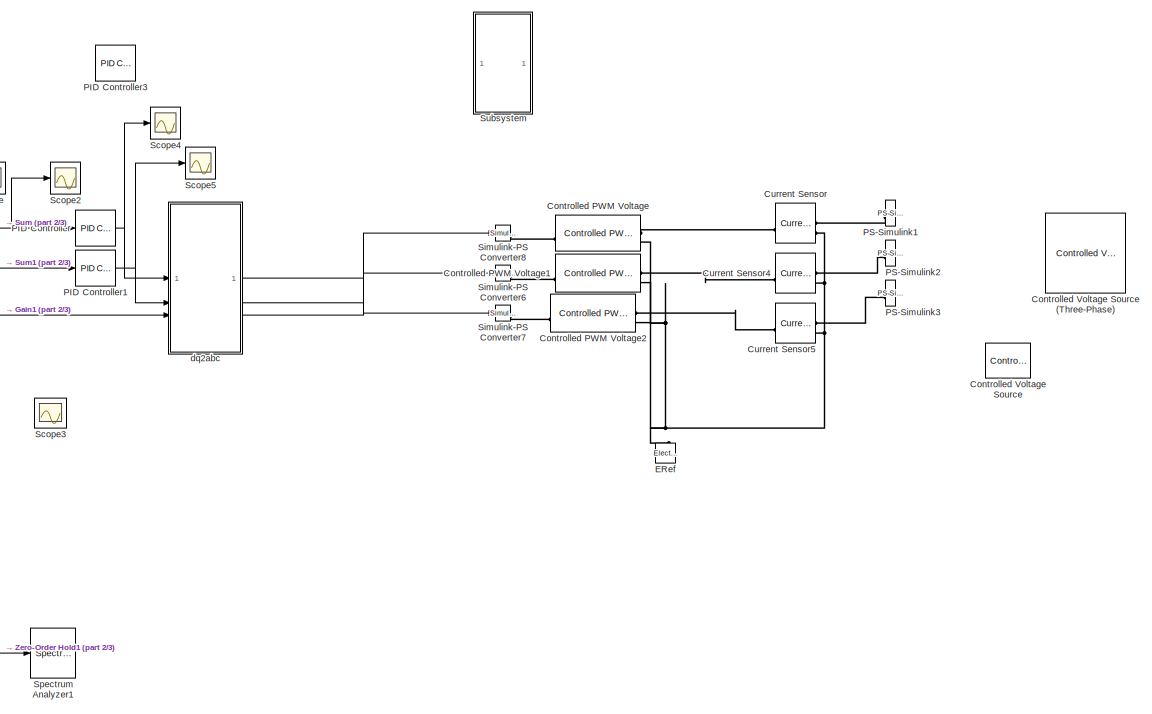
[diagram: root canvas - part 1/3, right side, full height]
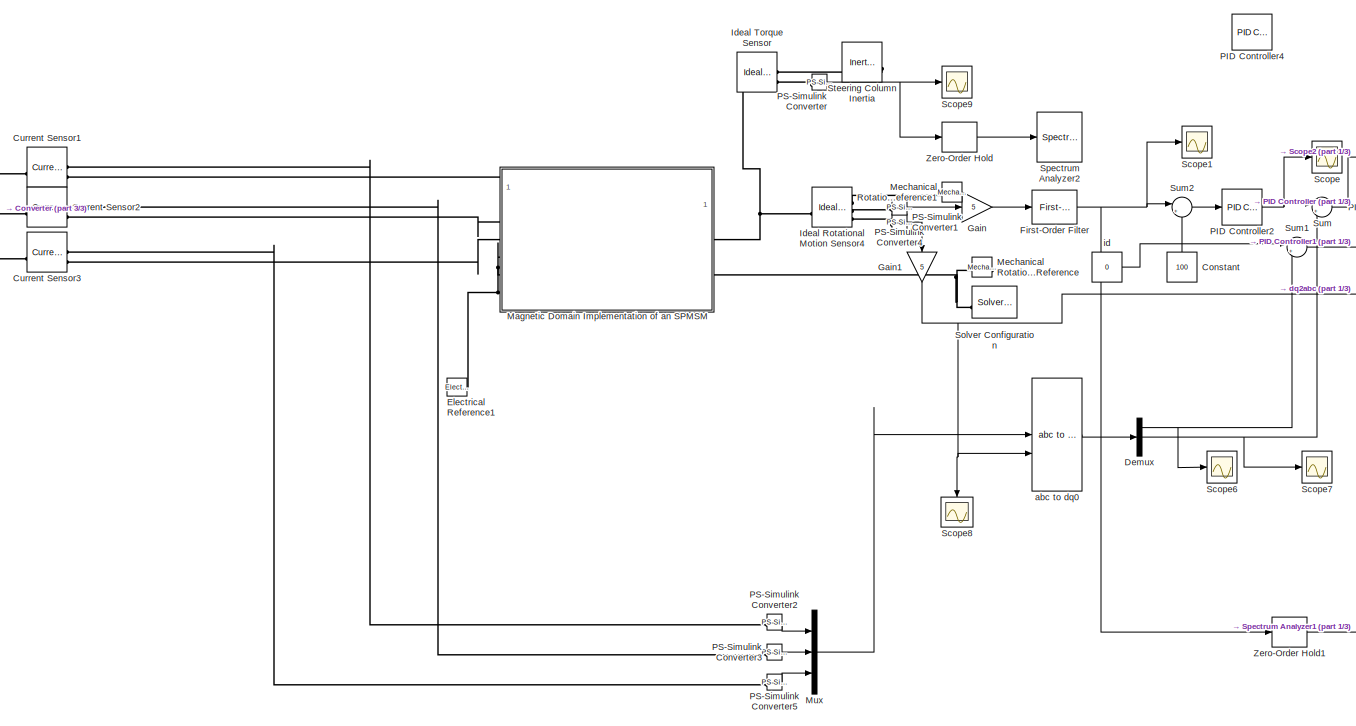
[diagram: root canvas - part 2/3, center side, full height]
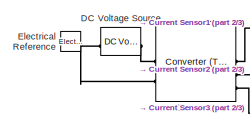
[diagram: root canvas - part 3/3, top left region]
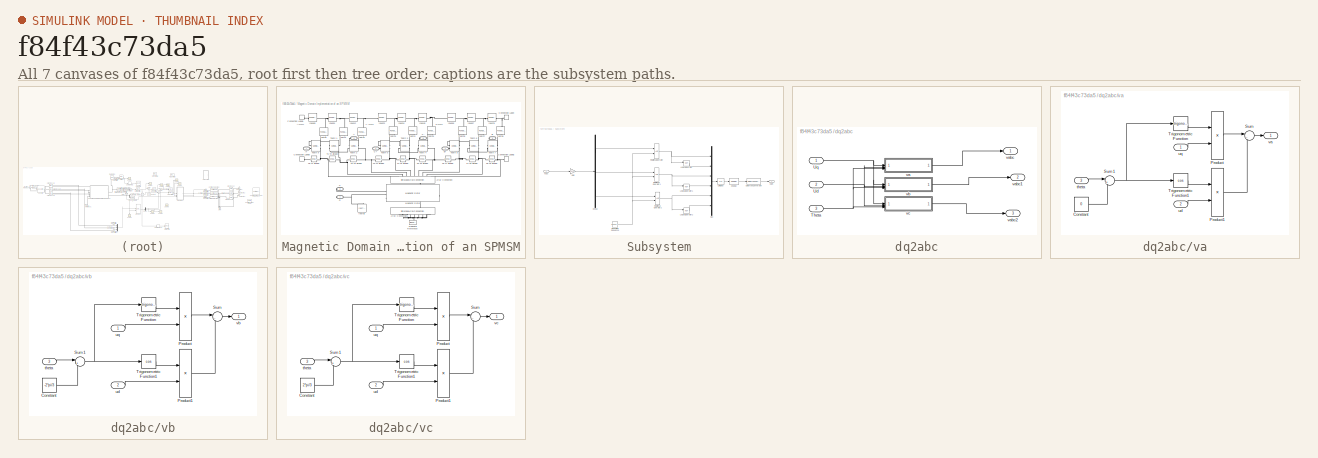
[diagram: thumbnail index - all 7 canvases of the model, root first then tree order]
MODEL slx_f84f43c73da5
KIND model
CONFIG AbsTol = auto
CONFIG EnableMultiTasking = off
CONFIG FixedStep = auto
CONFIG MaxStep = auto
CONFIG MinStep = auto
CONFIG RelTol = 1e-3
CONFIG SampleTimeConstraint = Unconstrained
CONFIG SolverName = ode23t
CONFIG StartTime = 0.0
CONFIG StopTime = 2
BLOCK [Constant] Constant
  NameLocation = right
  Value = 100
BLOCK [Reference] Controlled PWM Voltage  REF=ee_lib/Integrated Circuits/Controlled PWM
Voltage
  SourceBlock = ee_lib/Integrated Circuits/Controlled PWM\nVoltage
  SourceType = Controlled PWM\nVoltage
BLOCK [Reference] Controlled PWM Voltage1  REF=ee_lib/Integrated Circuits/Controlled PWM
Voltage
  SourceBlock = ee_lib/Integrated Circuits/Controlled PWM\nVoltage
  SourceType = Controlled PWM\nVoltage
BLOCK [Reference] Controlled PWM Voltage2  REF=ee_lib/Integrated Circuits/Controlled PWM
Voltage
  SourceBlock = ee_lib/Integrated Circuits/Controlled PWM\nVoltage
  SourceType = Controlled PWM\nVoltage
BLOCK [Reference] Controlled Voltage Source  REF=spsControlledVoltageSourceLib/Controlled Voltage Source
  LibrarySourceBlock = sps_lib/Sources/Controlled Voltage Source
  NameLocation = left
  SourceBlock = spsControlledVoltageSourceLib/Controlled Voltage Source
  SourceType = Controlled Voltage Source
BLOCK [Reference] Controlled Voltage Source (Three-Phase)  REF=ee_lib/Sources/Controlled Voltage
Source
(Three-Phase)
  SourceBlock = ee_lib/Sources/Controlled Voltage\nSource\n(Three-Phase)
  SourceType = Controlled Voltage\nSource\n(Three-Phase)
BLOCK [Reference] Converter  REF=ee_lib/Semiconductors &
Converters/Converters/Converter
(Three-Phase)
  SourceBlock = ee_lib/Semiconductors &\nConverters/Converters/Converter\n(Three-Phase)
  SourceType = Converter\n(Three-Phase)
BLOCK [Reference] Current Sensor  REF=fl_lib/Electrical/Electrical Sensors/Current Sensor
  NameLocation = top
  SourceBlock = fl_lib/Electrical/Electrical Sensors/Current Sensor
  SourceType = Current Sensor
BLOCK [Reference] Current Sensor1  REF=fl_lib/Electrical/Electrical Sensors/Current Sensor
  SourceBlock = fl_lib/Electrical/Electrical Sensors/Current Sensor
  SourceType = Current Sensor
BLOCK [Reference] Current Sensor2  REF=fl_lib/Electrical/Electrical Sensors/Current Sensor
  SourceBlock = fl_lib/Electrical/Electrical Sensors/Current Sensor
  SourceType = Current Sensor
BLOCK [Reference] Current Sensor3  REF=fl_lib/Electrical/Electrical Sensors/Current Sensor
  SourceBlock = fl_lib/Electrical/Electrical Sensors/Current Sensor
  SourceType = Current Sensor
BLOCK [Reference] Current Sensor4  REF=fl_lib/Electrical/Electrical Sensors/Current Sensor
  NameLocation = top
  SourceBlock = fl_lib/Electrical/Electrical Sensors/Current Sensor
  SourceType = Current Sensor
BLOCK [Reference] Current Sensor5  REF=fl_lib/Electrical/Electrical Sensors/Current Sensor
  NameLocation = top
  SourceBlock = fl_lib/Electrical/Electrical Sensors/Current Sensor
  SourceType = Current Sensor
BLOCK [Reference] DC Voltage Source  REF=fl_lib/Electrical/Electrical Sources/DC Voltage Source
  NameLocation = top
  SourceBlock = fl_lib/Electrical/Electrical Sources/DC Voltage Source
  SourceType = DC Voltage Source
BLOCK [Demux] Demux
  Outputs = 3
BLOCK [Reference] ERef  REF=fl_lib/Electrical/Electrical Elements/Electrical Reference
  NameLocation = left
  SourceBlock = fl_lib/Electrical/Electrical Elements/Electrical Reference
  SourceType = Electrical Reference
BLOCK [Reference] Electrical Reference  REF=fl_lib/Electrical/Electrical Elements/Electrical Reference
  SourceBlock = fl_lib/Electrical/Electrical Elements/Electrical Reference
  SourceType = Electrical Reference
BLOCK [Reference] Electrical Reference1  REF=fl_lib/Electrical/Electrical Elements/Electrical Reference
  SourceBlock = fl_lib/Electrical/Electrical Elements/Electrical Reference
  SourceType = Electrical Reference
BLOCK [Reference] First-Order Filter  REF=spsFirstOrderFilterLib/First-Order
Filter
  LibrarySourceBlock = sps_lib/Control/Filters/First-Order\nFilter
  SourceBlock = spsFirstOrderFilterLib/First-Order\nFilter
  SourceType = First-Order Filter
BLOCK [Gain] Gain
  Gain = 5
BLOCK [Gain] Gain1
  Gain = 5
  NameLocation = left
BLOCK [Reference] Ideal Rotational Motion Sensor4  REF=fl_lib/Mechanical/Mechanical Sensors/Ideal Rotational
Motion Sensor
  SourceBlock = fl_lib/Mechanical/Mechanical Sensors/Ideal Rotational\nMotion Sensor
  SourceType = Ideal Rotational\nMotion Sensor
BLOCK [Reference] Ideal Torque Sensor  REF=fl_lib/Mechanical/Mechanical Sensors/Ideal Torque Sensor
  SourceBlock = fl_lib/Mechanical/Mechanical Sensors/Ideal Torque Sensor
  SourceType = Ideal Torque Sensor
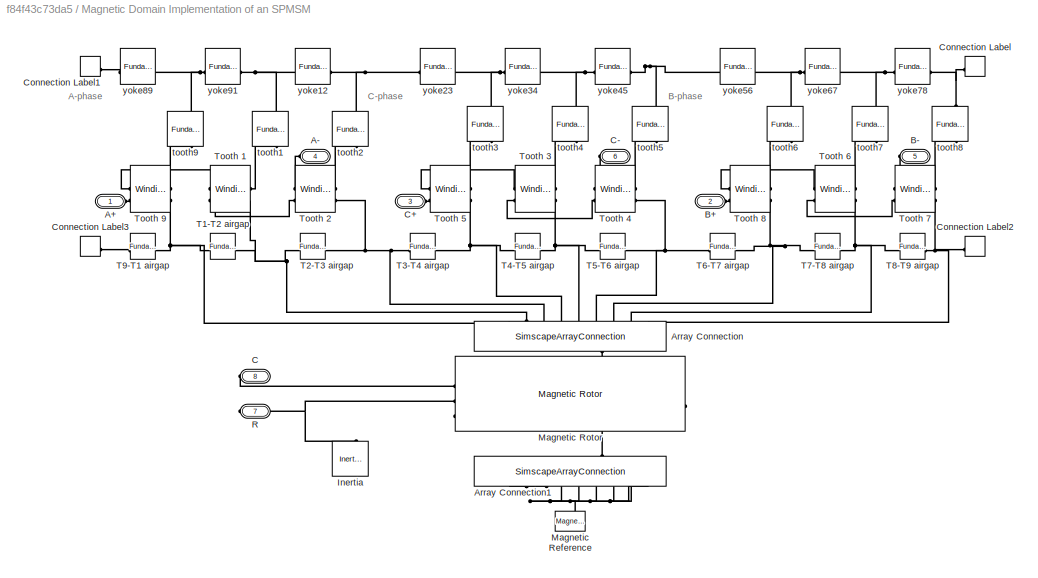
BLOCK [SubSystem] Magnetic Domain Implementation of an SPMSM
BLOCK [PMIOPort] Magnetic Domain Implementation of an SPMSM/A+
  Side = Left
BLOCK [PMIOPort] Magnetic Domain Implementation of an SPMSM/A-
  NameLocation = top
  Port = 4
  Side = Left
BLOCK [SimscapeArrayConnection] Magnetic Domain Implementation of an SPMSM/Array Connection
  Domain = foundation.magnetic.magnetic
  NameLocation = left
  NumScalarElements = 9
BLOCK [SimscapeArrayConnection] Magnetic Domain Implementation of an SPMSM/Array Connection1
  Domain = foundation.magnetic.magnetic
  NameLocation = right
  NumScalarElements = 9
BLOCK [PMIOPort] Magnetic Domain Implementation of an SPMSM/B+
  Port = 2
  Side = Left
BLOCK [PMIOPort] Magnetic Domain Implementation of an SPMSM/B-
  NameLocation = top
  Port = 5
  Side = Left
BLOCK [PMIOPort] Magnetic Domain Implementation of an SPMSM/C
  Port = 8
  Side = Right
BLOCK [PMIOPort] Magnetic Domain Implementation of an SPMSM/C+
  Port = 3
  Side = Left
BLOCK [PMIOPort] Magnetic Domain Implementation of an SPMSM/C-
  NameLocation = top
  Port = 6
  Side = Left
BLOCK [ConnectionLabel] Magnetic Domain Implementation of an SPMSM/Connection Label
  Label = Y
BLOCK [ConnectionLabel] Magnetic Domain Implementation of an SPMSM/Connection Label1
  Label = Y
  NameLocation = top
BLOCK [ConnectionLabel] Magnetic Domain Implementation of an SPMSM/Connection Label2
  Label = SL
BLOCK [ConnectionLabel] Magnetic Domain Implementation of an SPMSM/Connection Label3
  Label = SL
BLOCK [Reference] Magnetic Domain Implementation of an SPMSM/Inertia  REF=fl_lib/Mechanical/Rotational Elements/Inertia
  NameLocation = right
  SourceBlock = fl_lib/Mechanical/Rotational Elements/Inertia
  SourceType = Inertia
BLOCK [Reference] Magnetic Domain Implementation of an SPMSM/Magnetic Reference  REF=fl_lib/Magnetic/Magnetic Elements/Magnetic Reference
  NameLocation = right
  SourceBlock = fl_lib/Magnetic/Magnetic Elements/Magnetic Reference
  SourceType = Magnetic Reference
BLOCK [Reference] Magnetic Domain Implementation of an SPMSM/Magnetic Rotor  REF=ee_lib/Electromechanical/Magnetic Rotor
  SourceBlock = ee_lib/Electromechanical/Magnetic Rotor
  SourceType = Magnetic Rotor
BLOCK [PMIOPort] Magnetic Domain Implementation of an SPMSM/R
  Port = 7
  Side = Right
BLOCK [Reference] Magnetic Domain Implementation of an SPMSM/T1-T2 airgap  REF=fl_lib/Magnetic/Magnetic Elements/Fundamental
Reluctance
  SourceBlock = fl_lib/Magnetic/Magnetic Elements/Fundamental\nReluctance
  SourceType = Fundamental\nReluctance
BLOCK [Reference] Magnetic Domain Implementation of an SPMSM/T2-T3 airgap  REF=fl_lib/Magnetic/Magnetic Elements/Fundamental
Reluctance
  SourceBlock = fl_lib/Magnetic/Magnetic Elements/Fundamental\nReluctance
  SourceType = Fundamental\nReluctance
BLOCK [Reference] Magnetic Domain Implementation of an SPMSM/T3-T4 airgap  REF=fl_lib/Magnetic/Magnetic Elements/Fundamental
Reluctance
  SourceBlock = fl_lib/Magnetic/Magnetic Elements/Fundamental\nReluctance
  SourceType = Fundamental\nReluctance
BLOCK [Reference] Magnetic Domain Implementation of an SPMSM/T4-T5 airgap  REF=fl_lib/Magnetic/Magnetic Elements/Fundamental
Reluctance
  SourceBlock = fl_lib/Magnetic/Magnetic Elements/Fundamental\nReluctance
  SourceType = Fundamental\nReluctance
BLOCK [Reference] Magnetic Domain Implementation of an SPMSM/T5-T6 airgap  REF=fl_lib/Magnetic/Magnetic Elements/Fundamental
Reluctance
  SourceBlock = fl_lib/Magnetic/Magnetic Elements/Fundamental\nReluctance
  SourceType = Fundamental\nReluctance
BLOCK [Reference] Magnetic Domain Implementation of an SPMSM/T6-T7 airgap  REF=fl_lib/Magnetic/Magnetic Elements/Fundamental
Reluctance
  SourceBlock = fl_lib/Magnetic/Magnetic Elements/Fundamental\nReluctance
  SourceType = Fundamental\nReluctance
BLOCK [Reference] Magnetic Domain Implementation of an SPMSM/T7-T8 airgap  REF=fl_lib/Magnetic/Magnetic Elements/Fundamental
Reluctance
  SourceBlock = fl_lib/Magnetic/Magnetic Elements/Fundamental\nReluctance
  SourceType = Fundamental\nReluctance
BLOCK [Reference] Magnetic Domain Implementation of an SPMSM/T8-T9 airgap  REF=fl_lib/Magnetic/Magnetic Elements/Fundamental
Reluctance
  SourceBlock = fl_lib/Magnetic/Magnetic Elements/Fundamental\nReluctance
  SourceType = Fundamental\nReluctance
BLOCK [Reference] Magnetic Domain Implementation of an SPMSM/T9-T1 airgap  REF=fl_lib/Magnetic/Magnetic Elements/Fundamental
Reluctance
  SourceBlock = fl_lib/Magnetic/Magnetic Elements/Fundamental\nReluctance
  SourceType = Fundamental\nReluctance
BLOCK [Reference] Magnetic Domain Implementation of an SPMSM/Tooth 1  REF=ee_lib/Passive/Winding
  SourceBlock = ee_lib/Passive/Winding
  SourceType = Winding
BLOCK [Reference] Magnetic Domain Implementation of an SPMSM/Tooth 2  REF=ee_lib/Passive/Winding
  SourceBlock = ee_lib/Passive/Winding
  SourceType = Winding
BLOCK [Reference] Magnetic Domain Implementation of an SPMSM/Tooth 3  REF=ee_lib/Passive/Winding
  SourceBlock = ee_lib/Passive/Winding
  SourceType = Winding
BLOCK [Reference] Magnetic Domain Implementation of an SPMSM/Tooth 4  REF=ee_lib/Passive/Winding
  SourceBlock = ee_lib/Passive/Winding
  SourceType = Winding
BLOCK [Reference] Magnetic Domain Implementation of an SPMSM/Tooth 5  REF=ee_lib/Passive/Winding
  SourceBlock = ee_lib/Passive/Winding
  SourceType = Winding
BLOCK [Reference] Magnetic Domain Implementation of an SPMSM/Tooth 6  REF=ee_lib/Passive/Winding
  SourceBlock = ee_lib/Passive/Winding
  SourceType = Winding
BLOCK [Reference] Magnetic Domain Implementation of an SPMSM/Tooth 7  REF=ee_lib/Passive/Winding
  SourceBlock = ee_lib/Passive/Winding
  SourceType = Winding
BLOCK [Reference] Magnetic Domain Implementation of an SPMSM/Tooth 8  REF=ee_lib/Passive/Winding
  SourceBlock = ee_lib/Passive/Winding
  SourceType = Winding
BLOCK [Reference] Magnetic Domain Implementation of an SPMSM/Tooth 9  REF=ee_lib/Passive/Winding
  SourceBlock = ee_lib/Passive/Winding
  SourceType = Winding
BLOCK [Reference] Magnetic Domain Implementation of an SPMSM/tooth1  REF=fl_lib/Magnetic/Magnetic Elements/Fundamental
Reluctance
  NameLocation = left
  SourceBlock = fl_lib/Magnetic/Magnetic Elements/Fundamental\nReluctance
  SourceType = Fundamental\nReluctance
BLOCK [Reference] Magnetic Domain Implementation of an SPMSM/tooth2  REF=fl_lib/Magnetic/Magnetic Elements/Fundamental
Reluctance
  NameLocation = left
  SourceBlock = fl_lib/Magnetic/Magnetic Elements/Fundamental\nReluctance
  SourceType = Fundamental\nReluctance
BLOCK [Reference] Magnetic Domain Implementation of an SPMSM/tooth3  REF=fl_lib/Magnetic/Magnetic Elements/Fundamental
Reluctance
  NameLocation = left
  SourceBlock = fl_lib/Magnetic/Magnetic Elements/Fundamental\nReluctance
  SourceType = Fundamental\nReluctance
BLOCK [Reference] Magnetic Domain Implementation of an SPMSM/tooth4  REF=fl_lib/Magnetic/Magnetic Elements/Fundamental
Reluctance
  NameLocation = left
  SourceBlock = fl_lib/Magnetic/Magnetic Elements/Fundamental\nReluctance
  SourceType = Fundamental\nReluctance
BLOCK [Reference] Magnetic Domain Implementation of an SPMSM/tooth5  REF=fl_lib/Magnetic/Magnetic Elements/Fundamental
Reluctance
  NameLocation = left
  SourceBlock = fl_lib/Magnetic/Magnetic Elements/Fundamental\nReluctance
  SourceType = Fundamental\nReluctance
BLOCK [Reference] Magnetic Domain Implementation of an SPMSM/tooth6  REF=fl_lib/Magnetic/Magnetic Elements/Fundamental
Reluctance
  NameLocation = left
  SourceBlock = fl_lib/Magnetic/Magnetic Elements/Fundamental\nReluctance
  SourceType = Fundamental\nReluctance
BLOCK [Reference] Magnetic Domain Implementation of an SPMSM/tooth7  REF=fl_lib/Magnetic/Magnetic Elements/Fundamental
Reluctance
  NameLocation = left
  SourceBlock = fl_lib/Magnetic/Magnetic Elements/Fundamental\nReluctance
  SourceType = Fundamental\nReluctance
BLOCK [Reference] Magnetic Domain Implementation of an SPMSM/tooth8  REF=fl_lib/Magnetic/Magnetic Elements/Fundamental
Reluctance
  NameLocation = left
  SourceBlock = fl_lib/Magnetic/Magnetic Elements/Fundamental\nReluctance
  SourceType = Fundamental\nReluctance
BLOCK [Reference] Magnetic Domain Implementation of an SPMSM/tooth9  REF=fl_lib/Magnetic/Magnetic Elements/Fundamental
Reluctance
  NameLocation = left
  SourceBlock = fl_lib/Magnetic/Magnetic Elements/Fundamental\nReluctance
  SourceType = Fundamental\nReluctance
BLOCK [Reference] Magnetic Domain Implementation of an SPMSM/yoke12  REF=fl_lib/Magnetic/Magnetic Elements/Fundamental
Reluctance
  SourceBlock = fl_lib/Magnetic/Magnetic Elements/Fundamental\nReluctance
  SourceType = Fundamental\nReluctance
BLOCK [Reference] Magnetic Domain Implementation of an SPMSM/yoke23  REF=fl_lib/Magnetic/Magnetic Elements/Fundamental
Reluctance
  SourceBlock = fl_lib/Magnetic/Magnetic Elements/Fundamental\nReluctance
  SourceType = Fundamental\nReluctance
BLOCK [Reference] Magnetic Domain Implementation of an SPMSM/yoke34  REF=fl_lib/Magnetic/Magnetic Elements/Fundamental
Reluctance
  SourceBlock = fl_lib/Magnetic/Magnetic Elements/Fundamental\nReluctance
  SourceType = Fundamental\nReluctance
BLOCK [Reference] Magnetic Domain Implementation of an SPMSM/yoke45  REF=fl_lib/Magnetic/Magnetic Elements/Fundamental
Reluctance
  SourceBlock = fl_lib/Magnetic/Magnetic Elements/Fundamental\nReluctance
  SourceType = Fundamental\nReluctance
BLOCK [Reference] Magnetic Domain Implementation of an SPMSM/yoke56  REF=fl_lib/Magnetic/Magnetic Elements/Fundamental
Reluctance
  SourceBlock = fl_lib/Magnetic/Magnetic Elements/Fundamental\nReluctance
  SourceType = Fundamental\nReluctance
BLOCK [Reference] Magnetic Domain Implementation of an SPMSM/yoke67  REF=fl_lib/Magnetic/Magnetic Elements/Fundamental
Reluctance
  SourceBlock = fl_lib/Magnetic/Magnetic Elements/Fundamental\nReluctance
  SourceType = Fundamental\nReluctance
BLOCK [Reference] Magnetic Domain Implementation of an SPMSM/yoke78  REF=fl_lib/Magnetic/Magnetic Elements/Fundamental
Reluctance
  SourceBlock = fl_lib/Magnetic/Magnetic Elements/Fundamental\nReluctance
  SourceType = Fundamental\nReluctance
BLOCK [Reference] Magnetic Domain Implementation of an SPMSM/yoke89  REF=fl_lib/Magnetic/Magnetic Elements/Fundamental
Reluctance
  SourceBlock = fl_lib/Magnetic/Magnetic Elements/Fundamental\nReluctance
  SourceType = Fundamental\nReluctance
BLOCK [Reference] Magnetic Domain Implementation of an SPMSM/yoke91  REF=fl_lib/Magnetic/Magnetic Elements/Fundamental
Reluctance
  SourceBlock = fl_lib/Magnetic/Magnetic Elements/Fundamental\nReluctance
  SourceType = Fundamental\nReluctance
BLOCK [Reference] Mechanical Rotational Reference  REF=fl_lib/Mechanical/Rotational Elements/Mechanical
Rotational Reference
  NameLocation = right
  SourceBlock = fl_lib/Mechanical/Rotational Elements/Mechanical\nRotational Reference
  SourceType = Mechanical\nRotational Reference
BLOCK [Reference] Mechanical Rotational Reference1  REF=fl_lib/Mechanical/Rotational Elements/Mechanical
Rotational Reference
  NameLocation = top
  SourceBlock = fl_lib/Mechanical/Rotational Elements/Mechanical\nRotational Reference
  SourceType = Mechanical\nRotational Reference
BLOCK [Mux] Mux
  DisplayOption = bar
  Inputs = 3
BLOCK [Reference] PID Controller  REF=slpidlib/PID Controller
  SourceBlock = slpidlib/PID Controller
  SourceType = PID 1dof
BLOCK [Reference] PID Controller1  REF=slpidlib/PID Controller
  SourceBlock = slpidlib/PID Controller
  SourceType = PID 1dof
BLOCK [Reference] PID Controller2  REF=slpidlib/PID Controller
  SourceBlock = slpidlib/PID Controller
  SourceType = PID 1dof
BLOCK [Reference] PID Controller3  REF=slpidlib/PID Controller
  SourceBlock = slpidlib/PID Controller
  SourceType = PID 1dof
BLOCK [Reference] PID Controller4  REF=slpidlib/PID Controller
  SourceBlock = slpidlib/PID Controller
  SourceType = PID 1dof
BLOCK [Reference] PS-Simulink Converter  REF=nesl_utility/PS-Simulink
Converter
  SourceBlock = nesl_utility/PS-Simulink\nConverter
  SourceType = PS-Simulink\nConverter
BLOCK [Reference] PS-Simulink Converter1  REF=nesl_utility/PS-Simulink
Converter
  SourceBlock = nesl_utility/PS-Simulink\nConverter
  SourceType = PS-Simulink\nConverter
BLOCK [Reference] PS-Simulink Converter2  REF=nesl_utility/PS-Simulink
Converter
  SourceBlock = nesl_utility/PS-Simulink\nConverter
  SourceType = PS-Simulink\nConverter
BLOCK [Reference] PS-Simulink Converter3  REF=nesl_utility/PS-Simulink
Converter
  SourceBlock = nesl_utility/PS-Simulink\nConverter
  SourceType = PS-Simulink\nConverter
BLOCK [Reference] PS-Simulink Converter4  REF=nesl_utility/PS-Simulink
Converter
  SourceBlock = nesl_utility/PS-Simulink\nConverter
  SourceType = PS-Simulink\nConverter
BLOCK [Reference] PS-Simulink Converter5  REF=nesl_utility/PS-Simulink
Converter
  SourceBlock = nesl_utility/PS-Simulink\nConverter
  SourceType = PS-Simulink\nConverter
BLOCK [Reference] PS-Simulink1  REF=nesl_utility/PS-Simulink
Converter
  SourceBlock = nesl_utility/PS-Simulink\nConverter
  SourceType = PS-Simulink\nConverter
BLOCK [Reference] PS-Simulink2  REF=nesl_utility/PS-Simulink
Converter
  SourceBlock = nesl_utility/PS-Simulink\nConverter
  SourceType = PS-Simulink\nConverter
BLOCK [Reference] PS-Simulink3  REF=nesl_utility/PS-Simulink
Converter
  SourceBlock = nesl_utility/PS-Simulink\nConverter
  SourceType = PS-Simulink\nConverter
BLOCK [Scope] Scope
  ActiveDisplayYMaximum = 1.1746832168582009
  ActiveDisplayYMinimum = -4.019417563087452
  Floating = off
  GraphicalSettings = {"Style":{"BackgroundColor":[0.12941176470588237,0.12941176470588237,0.12941176470588237],"AxesColor":[0.07058823529411765,0.07058823529411765,0.07058823529411765],"LabelsColor":[0.8509803921568627,0.8509803921568627,0.8509803921568627],"PreserveColors":false,"Visible":[true],"LineStyle":["-"],"LineWidth":[1.5],"BarWidth":[0.9],"LineColor":["auto"],"LineFaceAlpha":[1],"LineEdgeAlpha":[1],"Marker":...<+1979ch>
  MultipleDisplayCache = [{"MaxYLimMag":4.019417563087452,"MaxYLimReal":1.1746832168582009,"MinYLimMag":0,"MinYLimReal":-4.019417563087452,"PlotAsMagnitudePhase":false,"ShowGrid":true,"ShowLegend":false,"Title":"%<SignalLabel>","YLabel":""}]
  NumInputPorts = 1
  ScopeFrameLocation = window
  WasSavedAsWebScope = on
  WindowPosition = [316.000000,373.000000,560.000000,420.000000,]
BLOCK [Scope] Scope1
  ActiveDisplayYMaximum = 94.929108458934408
  ActiveDisplayYMinimum = -10.547678717659377
  DataLoggingVariableName = ScopeData1
  Floating = off
  GraphicalSettings = {"AxesScalingProperties":{"AlignXAxis":"Center","AlignYAxis":"Center","AutoScaleXAxisLimits":false,"AxesScaling":"Manual","AxesScalingNumUpdates":10,"ExpandOnly":true,"ScaleAxesLimitsAtStop":false,"XAxisDataRange":100,"YAxisDataRange":80},"DisplayProperties":{"ColorOrder":["auto","auto","auto","auto","auto","auto","auto","auto","auto","auto","auto","auto","auto","auto","auto","auto","auto","auto",...<+2010ch>
  MultipleDisplayCache = [{"MaxYLimMag":94.929108458934408,"MaxYLimReal":94.929108458934408,"MinYLimMag":0,"MinYLimReal":-10.547678717659377,"PlotAsMagnitudePhase":false,"ShowGrid":true,"ShowLegend":false,"Title":"%<SignalLabel>","YLabel":""}]
  NumInputPorts = 1
  ScopeFrameLocation = window
  WasSavedAsWebScope = on
  WindowPosition = [599.000000,302.000000,560.000000,394.000000,]
BLOCK [Scope] Scope2
  ActiveDisplayYMaximum = 25.906838498970551
  ActiveDisplayYMinimum = -26.737428392981222
  DataLoggingVariableName = ScopeData2
  Floating = off
  GraphicalSettings = {"Style":{"BackgroundColor":[0.12941176470588237,0.12941176470588237,0.12941176470588237],"AxesColor":[0.07058823529411765,0.07058823529411765,0.07058823529411765],"LabelsColor":[0.8509803921568627,0.8509803921568627,0.8509803921568627],"PreserveColors":false,"Visible":[true],"LineStyle":["-"],"LineWidth":[1.5],"BarWidth":[0.9],"LineColor":["auto"],"LineFaceAlpha":[1],"LineEdgeAlpha":[1],"Marker":...<+2296ch>
  MultipleDisplayCache = [{"MaxYLimMag":26.737428392981222,"MaxYLimReal":25.906838498970551,"MinYLimMag":0,"MinYLimReal":-26.737428392981222,"PlotAsMagnitudePhase":false,"ShowGrid":true,"ShowLegend":false,"Title":"%<SignalLabel>","YLabel":""}]
  NumInputPorts = 1
  ScopeFrameLocation = window
  WasSavedAsWebScope = on
  WindowPosition = [364.000000,490.000000,560.000000,420.000000,]
BLOCK [Scope] Scope3
  ActiveDisplayYMaximum = 19.374157195669472
  ActiveDisplayYMinimum = -20.005283078213854
  DataLoggingVariableName = ScopeData3
  Floating = off
  GraphicalSettings = {"Style":{"BackgroundColor":[0.12941176470588237,0.12941176470588237,0.12941176470588237],"AxesColor":[0.07058823529411765,0.07058823529411765,0.07058823529411765],"LabelsColor":[0.8509803921568627,0.8509803921568627,0.8509803921568627],"PreserveColors":false,"Visible":[true],"LineStyle":["-"],"LineWidth":[1.5],"BarWidth":[0.9],"LineColor":["auto"],"LineFaceAlpha":[1],"LineEdgeAlpha":[1],"Marker":...<+1983ch>
  MultipleDisplayCache = [{"MaxYLimMag":20.005283078213854,"MaxYLimReal":19.374157195669472,"MinYLimMag":0,"MinYLimReal":-20.005283078213854,"PlotAsMagnitudePhase":false,"ShowGrid":true,"ShowLegend":false,"Title":"%<SignalLabel>","YLabel":""}]
  NameLocation = left
  NumInputPorts = 1
  ScopeFrameLocation = window
  WasSavedAsWebScope = on
  WindowPosition = [755.000000,331.000000,560.000000,420.000000,]
BLOCK [Scope] Scope4
  ActiveDisplayYMaximum = 59.846573511163854
  ActiveDisplayYMinimum = -82.475672904218186
  DataLoggingVariableName = ScopeData4
  Floating = off
  GraphicalSettings = {"Style":{"BackgroundColor":[0.12941176470588237,0.12941176470588237,0.12941176470588237],"AxesColor":[0.07058823529411765,0.07058823529411765,0.07058823529411765],"LabelsColor":[0.8509803921568627,0.8509803921568627,0.8509803921568627],"PreserveColors":false,"Visible":[true],"LineStyle":["-"],"LineWidth":[1.5],"BarWidth":[0.9],"LineColor":["auto"],"LineFaceAlpha":[1],"LineEdgeAlpha":[1],"Marker":...<+2319ch>
  MultipleDisplayCache = [{"MaxYLimMag":204.19313527772593,"MaxYLimReal":59.846573511163854,"MinYLimMag":0,"MinYLimReal":-82.475672904218186,"PlotAsMagnitudePhase":false,"ShowGrid":true,"ShowLegend":false,"Title":"%<SignalLabel>","YLabel":""}]
  NumInputPorts = 1
  ScopeFrameLocation = window
  WasSavedAsWebScope = on
  WindowPosition = [1173.000000,341.000000,560.000000,420.000000,]
BLOCK [Scope] Scope5
  ActiveDisplayYMaximum = 1250
  ActiveDisplayYMinimum = -1250
  DataLoggingVariableName = ScopeData5
  Floating = off
  GraphicalSettings = {"AxesScalingProperties":{"AlignXAxis":"Center","AlignYAxis":"Center","AutoScaleXAxisLimits":false,"AxesScaling":"Manual","AxesScalingNumUpdates":10,"ExpandOnly":true,"ScaleAxesLimitsAtStop":false,"XAxisDataRange":100,"YAxisDataRange":80},"Cursors":{"CursorChannels":["auto","auto"],"Enabled":true,"Horizontal":true,"LinkToWaveform":true,"LockSpacing":false,"ShowMeasurement":true,"ShowPanel":false,"...<+2315ch>
  MultipleDisplayCache = [{"MaxYLimMag":1250,"MaxYLimReal":1250,"MinYLimMag":0,"MinYLimReal":-1250,"PlotAsMagnitudePhase":false,"ShowGrid":true,"ShowLegend":false,"Title":"%<SignalLabel>","YLabel":""}]
  NumInputPorts = 1
  ScopeFrameLocation = window
  WasSavedAsWebScope = on
  WindowPosition = [774.000000,275.000000,560.000000,420.000000,]
BLOCK [Scope] Scope6
  ActiveDisplayYMaximum = 3314.8973874888006
  ActiveDisplayYMinimum = -3358.5009916772633
  DataLoggingVariableName = ScopeData6
  Floating = off
  GraphicalSettings = {"AxesScalingProperties":{"AlignXAxis":"Center","AlignYAxis":"Center","AutoScaleXAxisLimits":false,"AxesScaling":"Manual","AxesScalingNumUpdates":10,"ExpandOnly":true,"ScaleAxesLimitsAtStop":false,"XAxisDataRange":100,"YAxisDataRange":80},"DisplayProperties":{"ColorOrder":["auto","auto","auto","auto","auto","auto","auto","auto","auto","auto","auto","auto","auto","auto","auto","auto","auto","auto",...<+2000ch>
  MultipleDisplayCache = [{"MaxYLimMag":3358.5009916772633,"MaxYLimReal":3314.8973874888006,"MinYLimMag":0,"MinYLimReal":-3358.5009916772633,"PlotAsMagnitudePhase":false,"ShowGrid":true,"ShowLegend":false,"Title":"%<SignalLabel>","YLabel":""}]
  NumInputPorts = 1
  ScopeFrameLocation = window
  WasSavedAsWebScope = on
  WindowPosition = [638.000000,329.000000,560.000000,420.000000,]
BLOCK [Scope] Scope7
  ActiveDisplayYMaximum = 1.0409285736394622
  ActiveDisplayYMinimum = -2.8426588150958878
  DataLoggingVariableName = ScopeData7
  Floating = off
  GraphicalSettings = {"Style":{"BackgroundColor":[0.12941176470588237,0.12941176470588237,0.12941176470588237],"AxesColor":[0.07058823529411765,0.07058823529411765,0.07058823529411765],"LabelsColor":[0.8509803921568627,0.8509803921568627,0.8509803921568627],"PreserveColors":false,"Visible":[true],"LineStyle":["-"],"LineWidth":[1.5],"BarWidth":[0.9],"LineColor":["auto"],"LineFaceAlpha":[1],"LineEdgeAlpha":[1],"Marker":...<+1988ch>
  MultipleDisplayCache = [{"MaxYLimMag":2.8426588150958878,"MaxYLimReal":1.0409285736394622,"MinYLimMag":0,"MinYLimReal":-2.8426588150958878,"PlotAsMagnitudePhase":false,"ShowGrid":true,"ShowLegend":false,"Title":"%<SignalLabel>","YLabel":""}]
  NumInputPorts = 1
  ScopeFrameLocation = window
  WasSavedAsWebScope = on
  WindowPosition = [638.000000,329.000000,560.000000,420.000000,]
BLOCK [Scope] Scope8
  ActiveDisplayYMaximum = 10.664194284729955
  ActiveDisplayYMinimum = 10.636225564991161
  DataLoggingVariableName = ScopeData8
  Floating = off
  GraphicalSettings = {"AxesScalingProperties":{"AlignXAxis":"Center","AlignYAxis":"Center","AutoScaleXAxisLimits":false,"AxesScaling":"Manual","AxesScalingNumUpdates":10,"ExpandOnly":true,"ScaleAxesLimitsAtStop":false,"XAxisDataRange":100,"YAxisDataRange":80},"DisplayProperties":{"ColorOrder":["auto","auto","auto","auto","auto","auto","auto","auto","auto","auto","auto","auto","auto","auto","auto","auto","auto","auto",...<+1997ch>
  MultipleDisplayCache = [{"MaxYLimMag":28.919923389358019,"MaxYLimReal":10.664194284729955,"MinYLimMag":0,"MinYLimReal":10.636225564991161,"PlotAsMagnitudePhase":false,"ShowGrid":true,"ShowLegend":false,"Title":"%<SignalLabel>","YLabel":""}]
  NameLocation = left
  NumInputPorts = 1
  ScopeFrameLocation = window
  WasSavedAsWebScope = on
  WindowPosition = [638.000000,329.000000,560.000000,420.000000,]
BLOCK [Scope] Scope9
  ActiveDisplayYMaximum = 3.6270345915396813
  ActiveDisplayYMinimum = -3.490150725346906
  DataLoggingVariableName = ScopeData9
  Floating = off
  GraphicalSettings = {"Style":{"BackgroundColor":[0.12941176470588237,0.12941176470588237,0.12941176470588237],"AxesColor":[0.07058823529411765,0.07058823529411765,0.07058823529411765],"LabelsColor":[0.8509803921568627,0.8509803921568627,0.8509803921568627],"PreserveColors":false,"Visible":[true],"LineStyle":["-"],"LineWidth":[1.5],"BarWidth":[0.9],"LineColor":["auto"],"LineFaceAlpha":[1],"LineEdgeAlpha":[1],"Marker":...<+2018ch>
  MultipleDisplayCache = [{"MaxYLimMag":3.6270345915396813,"MaxYLimReal":3.6270345915396813,"MinYLimMag":0,"MinYLimReal":-3.490150725346906,"PlotAsMagnitudePhase":false,"ShowGrid":true,"ShowLegend":false,"Title":"%<SignalLabel>","YLabel":""}]
  NumInputPorts = 1
  ScopeFrameLocation = window
  WasSavedAsWebScope = on
  WindowPosition = [654.000000,262.000000,560.000000,394.000000,]
BLOCK [Reference] Simulink-PS Converter6  REF=nesl_utility/Simulink-PS
Converter
  SourceBlock = nesl_utility/Simulink-PS\nConverter
  SourceType = Simulink-PS\nConverter
BLOCK [Reference] Simulink-PS Converter7  REF=nesl_utility/Simulink-PS
Converter
  SourceBlock = nesl_utility/Simulink-PS\nConverter
  SourceType = Simulink-PS\nConverter
BLOCK [Reference] Simulink-PS Converter8  REF=nesl_utility/Simulink-PS
Converter
  SourceBlock = nesl_utility/Simulink-PS\nConverter
  SourceType = Simulink-PS\nConverter
BLOCK [Reference] Solver Configuration  REF=nesl_utility/Solver
Configuration
  SourceBlock = nesl_utility/Solver\nConfiguration
  SourceType = Solver\nConfiguration
BLOCK [SpectrumAnalyzer] Spectrum Analyzer1
  FrequencyScale = Log
  FrequencySpan = Start and stop frequencies
  GraphicalSettings = {"GraphicalSettings":{"Style":{"BackgroundColor":[0.12941176470588237,0.12941176470588237,0.12941176470588237],"AxesColor":[0.070588235294117646,0.070588235294117646,0.070588235294117646],"LabelsColor":[0.85098039215686272,0.85098039215686272,0.85098039215686272],"PreserveColors":false,"Visible":true,"LineStyle":["-"],"LineWidth":1.5,"BarWidth":0.9,"LineColor":[1,0.90980392156862744,0.392156862745...<+1105ch>
  MaximizeAxes = Off
  PlotAsTwoSidedSpectrum = off
  SampleRate = 44.1e3
  ScopeFrameLocation = window
  SelectedToolstripTab = spectrumAnalyzerToolstrip.measurementsTab
  StartFrequency = 0
  StopFrequency = 50000
  WasSavedAsWebScope = on
  WindowInvariantSamplesPerUpdate = on
  WindowPosition = [1043.000000,183.000000,800.000000,483.000000,]
  YLimits = [-33.6201 70.2081]
BLOCK [SpectrumAnalyzer] Spectrum Analyzer2
  FrequencyScale = Log
  FrequencySpan = Start and stop frequencies
  GraphicalSettings = {"GraphicalSettings":{"Style":{"BackgroundColor":[0.12941176470588237,0.12941176470588237,0.12941176470588237],"AxesColor":[0.070588235294117646,0.070588235294117646,0.070588235294117646],"LabelsColor":[0.85098039215686272,0.85098039215686272,0.85098039215686272],"PreserveColors":false,"Visible":true,"LineStyle":["-"],"LineWidth":1.5,"BarWidth":0.9,"LineColor":[1,0.90980392156862744,0.392156862745...<+1105ch>
  MaximizeAxes = Off
  PlotAsTwoSidedSpectrum = off
  SampleRate = 44.1e3
  ScopeFrameLocation = window
  SelectedToolstripTab = spectrumAnalyzerToolstrip.measurementsTab
  StartFrequency = 0
  StopFrequency = 50000
  WasSavedAsWebScope = on
  WindowInvariantSamplesPerUpdate = on
  WindowPosition = [241.000000,195.000000,800.000000,483.000000,]
  YLimits = [-39.555 43.7551]
BLOCK [Reference] Steering Column Inertia  REF=fl_lib/Mechanical/Rotational Elements/Inertia
  SourceBlock = fl_lib/Mechanical/Rotational Elements/Inertia
  SourceType = Inertia
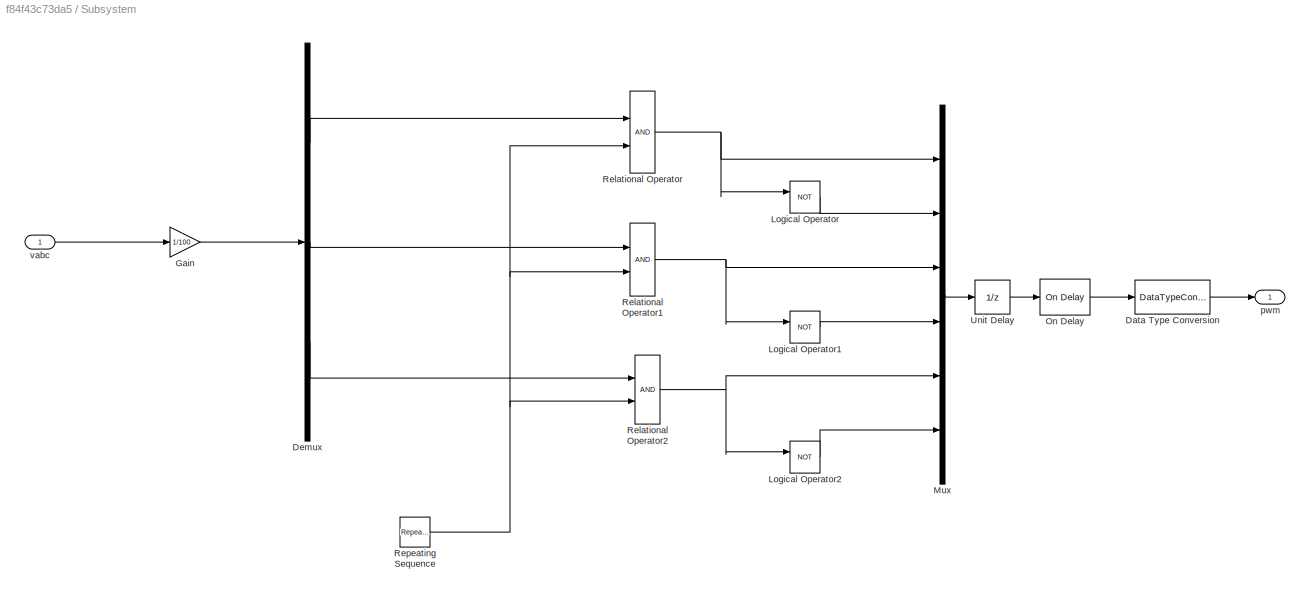
BLOCK [SubSystem] Subsystem
BLOCK [DataTypeConversion] Subsystem/Data Type Conversion
  RndMeth = Floor
  SaturateOnIntegerOverflow = off
BLOCK [Demux] Subsystem/Demux
  Outputs = 3
BLOCK [Gain] Subsystem/Gain
  Gain = 1/100
BLOCK [Logic] Subsystem/Logical Operator
  AllPortsSameDT = off
  Operator = NOT
  OutDataTypeStr = boolean
BLOCK [Logic] Subsystem/Logical Operator1
  AllPortsSameDT = off
  Operator = NOT
  OutDataTypeStr = boolean
BLOCK [Logic] Subsystem/Logical Operator2
  AllPortsSameDT = off
  Operator = NOT
  OutDataTypeStr = boolean
BLOCK [Mux] Subsystem/Mux
  DisplayOption = bar
  Inputs = 6
BLOCK [Reference] Subsystem/On Delay  REF=spsOnDelayLib/On Delay
  LibrarySourceBlock = sps_lib/Control/On Delay
  SourceBlock = spsOnDelayLib/On Delay
  SourceType = On/Off Delay
BLOCK [RelationalOperator] Subsystem/Relational Operator
  InputSameDT = off
  OutDataTypeStr = boolean
  RndMeth = Simplest
BLOCK [RelationalOperator] Subsystem/Relational Operator1
  InputSameDT = off
  OutDataTypeStr = boolean
  RndMeth = Simplest
BLOCK [RelationalOperator] Subsystem/Relational Operator2
  InputSameDT = off
  OutDataTypeStr = boolean
  RndMeth = Simplest
BLOCK [Reference] Subsystem/Repeating Sequence  REF=simulink/Sources/Repeating
Sequence
  SourceBlock = simulink/Sources/Repeating\nSequence
  SourceType = Repeating table
BLOCK [UnitDelay] Subsystem/Unit Delay
  HasFrameUpgradeWarning = on
  SampleTime = -1
BLOCK [Outport] Subsystem/pwm
  VectorParamsAs1DForOutWhenUnconnected = off
BLOCK [Inport] Subsystem/vabc
BLOCK [Sum] Sum
  Inputs = |+-
BLOCK [Sum] Sum1
  Inputs = |+-
BLOCK [Sum] Sum2
  Inputs = |+-
BLOCK [ZeroOrderHold] Zero-Order Hold
  SampleTime = 1e-6
BLOCK [ZeroOrderHold] Zero-Order Hold1
  SampleTime = 1e-6
BLOCK [Reference] abc to dq0  REF=spsabctodq0Lib/abc to dq0
  LibrarySourceBlock = sps_lib/Control/abc to dq0
  SourceBlock = spsabctodq0Lib/abc to dq0
  SourceType = abc to dq0 Transformation
BLOCK [SubSystem] dq2abc
BLOCK [Inport] dq2abc/Theta
  Port = 3
BLOCK [Inport] dq2abc/Ud
  Port = 2
BLOCK [Inport] dq2abc/Uq
BLOCK [SubSystem] dq2abc/va
BLOCK [Constant] dq2abc/va/Constant
  Value = 0
BLOCK [Product] dq2abc/va/Product
BLOCK [Product] dq2abc/va/Product1
BLOCK [Sum] dq2abc/va/Sum
  Inputs = |-+
BLOCK [Sum] dq2abc/va/Sum1
  Inputs = |++
BLOCK [Trigonometry] dq2abc/va/Trigonometric Function
BLOCK [Trigonometry] dq2abc/va/Trigonometric Function1
  Operator = cos
BLOCK [Inport] dq2abc/va/theta
  NameLocation = top
  Port = 3
BLOCK [Inport] dq2abc/va/ud
  Port = 2
BLOCK [Inport] dq2abc/va/uq
BLOCK [Outport] dq2abc/va/va
  VectorParamsAs1DForOutWhenUnconnected = off
BLOCK [Outport] dq2abc/vabc
  VectorParamsAs1DForOutWhenUnconnected = off
BLOCK [Outport] dq2abc/vabc1
  Port = 2
  VectorParamsAs1DForOutWhenUnconnected = off
BLOCK [Outport] dq2abc/vabc2
  Port = 3
  VectorParamsAs1DForOutWhenUnconnected = off
BLOCK [SubSystem] dq2abc/vb
BLOCK [Constant] dq2abc/vb/Constant
  Value = -2*pi/3
BLOCK [Product] dq2abc/vb/Product
BLOCK [Product] dq2abc/vb/Product1
BLOCK [Sum] dq2abc/vb/Sum
  Inputs = |-+
BLOCK [Sum] dq2abc/vb/Sum1
  Inputs = |++
BLOCK [Trigonometry] dq2abc/vb/Trigonometric Function
BLOCK [Trigonometry] dq2abc/vb/Trigonometric Function1
  Operator = cos
BLOCK [Inport] dq2abc/vb/theta
  NameLocation = top
  Port = 3
BLOCK [Inport] dq2abc/vb/ud
  Port = 2
BLOCK [Inport] dq2abc/vb/uq
BLOCK [Outport] dq2abc/vb/vb
  VectorParamsAs1DForOutWhenUnconnected = off
BLOCK [SubSystem] dq2abc/vc
BLOCK [Constant] dq2abc/vc/Constant
  Value = 2*pi/3
BLOCK [Product] dq2abc/vc/Product
BLOCK [Product] dq2abc/vc/Product1
BLOCK [Sum] dq2abc/vc/Sum
  Inputs = |-+
BLOCK [Sum] dq2abc/vc/Sum1
  Inputs = |++
BLOCK [Trigonometry] dq2abc/vc/Trigonometric Function
BLOCK [Trigonometry] dq2abc/vc/Trigonometric Function1
  Operator = cos
BLOCK [Inport] dq2abc/vc/theta
  NameLocation = top
  Port = 3
BLOCK [Inport] dq2abc/vc/ud
  Port = 2
BLOCK [Inport] dq2abc/vc/uq
BLOCK [Outport] dq2abc/vc/vc
  VectorParamsAs1DForOutWhenUnconnected = off
BLOCK [Constant] id
  Value = 0
ANNOTATION Magnetic Domain Implementation of an SPMSM: A-phase
ANNOTATION Magnetic Domain Implementation of an SPMSM: B-phase
ANNOTATION Magnetic Domain Implementation of an SPMSM: C-phase
LINE Constant:1 -> Sum2:2
NET Demux:1 -> Scope6:1, Sum1:2
NET Demux:2 -> Scope7:1, Sum:2
NET First-Order Filter:1 -> Scope1:1, Sum2:1, Zero-Order Hold1:1
NET Gain1:1 -> Scope8:1, abc to dq0:2, dq2abc:3
LINE Gain:1 -> First-Order Filter:1
LINE Mux:1 -> abc to dq0:1
NET PID Controller1:1 -> Scope5:1, dq2abc:2
NET PID Controller2:1 -> Scope:1, Sum:1
NET PID Controller:1 -> Scope4:1, dq2abc:1
LINE PS-Simulink Converter1:1 -> Gain1:1
LINE PS-Simulink Converter2:1 -> Mux:1
LINE PS-Simulink Converter3:1 -> Mux:2
LINE PS-Simulink Converter4:1 -> Gain:1
LINE PS-Simulink Converter5:1 -> Mux:3
NET PS-Simulink Converter:1 -> Scope9:1, Zero-Order Hold:1
LINE Subsystem/Data Type Conversion:1 -> Subsystem/pwm:1
LINE Subsystem/Demux:1 -> Subsystem/Relational Operator:1
LINE Subsystem/Demux:2 -> Subsystem/Relational Operator1:1
LINE Subsystem/Demux:3 -> Subsystem/Relational Operator2:1
LINE Subsystem/Gain:1 -> Subsystem/Demux:1
LINE Subsystem/Logical Operator1:1 -> Subsystem/Mux:4
LINE Subsystem/Logical Operator2:1 -> Subsystem/Mux:6
LINE Subsystem/Logical Operator:1 -> Subsystem/Mux:2
LINE Subsystem/Mux:1 -> Subsystem/Unit Delay:1
LINE Subsystem/On Delay:1 -> Subsystem/Data Type Conversion:1
NET Subsystem/Relational Operator1:1 -> Subsystem/Logical Operator1:1, Subsystem/Mux:3
NET Subsystem/Relational Operator2:1 -> Subsystem/Logical Operator2:1, Subsystem/Mux:5
NET Subsystem/Relational Operator:1 -> Subsystem/Logical Operator:1, Subsystem/Mux:1
NET Subsystem/Repeating Sequence:1 -> Subsystem/Relational Operator1:2, Subsystem/Relational Operator2:2, Subsystem/Relational Operator:2
LINE Subsystem/Unit Delay:1 -> Subsystem/On Delay:1
LINE Subsystem/vabc:1 -> Subsystem/Gain:1
LINE Sum1:1 -> PID Controller1:1
LINE Sum2:1 -> PID Controller2:1
NET Sum:1 -> PID Controller:1, Scope2:1
LINE Zero-Order Hold1:1 -> Spectrum Analyzer1:1
LINE Zero-Order Hold:1 -> Spectrum Analyzer2:1
LINE abc to dq0:1 -> Demux:1
NET dq2abc/Theta:1 -> dq2abc/va:3, dq2abc/vb:3, dq2abc/vc:3
NET dq2abc/Ud:1 -> dq2abc/va:2, dq2abc/vb:2, dq2abc/vc:2
NET dq2abc/Uq:1 -> dq2abc/va:1, dq2abc/vb:1, dq2abc/vc:1
LINE dq2abc/va/Constant:1 -> dq2abc/va/Sum1:2
LINE dq2abc/va/Product1:1 -> dq2abc/va/Sum:2
LINE dq2abc/va/Product:1 -> dq2abc/va/Sum:1
NET dq2abc/va/Sum1:1 -> dq2abc/va/Trigonometric Function1:1, dq2abc/va/Trigonometric Function:1
LINE dq2abc/va/Sum:1 -> dq2abc/va/va:1
LINE dq2abc/va/Trigonometric Function1:1 -> dq2abc/va/Product1:1
LINE dq2abc/va/Trigonometric Function:1 -> dq2abc/va/Product:1
LINE dq2abc/va/theta:1 -> dq2abc/va/Sum1:1
LINE dq2abc/va/ud:1 -> dq2abc/va/Product1:2
LINE dq2abc/va/uq:1 -> dq2abc/va/Product:2
LINE dq2abc/va:1 -> dq2abc/vabc:1
LINE dq2abc/vb/Constant:1 -> dq2abc/vb/Sum1:2
LINE dq2abc/vb/Product1:1 -> dq2abc/vb/Sum:2
LINE dq2abc/vb/Product:1 -> dq2abc/vb/Sum:1
NET dq2abc/vb/Sum1:1 -> dq2abc/vb/Trigonometric Function1:1, dq2abc/vb/Trigonometric Function:1
LINE dq2abc/vb/Sum:1 -> dq2abc/vb/vb:1
LINE dq2abc/vb/Trigonometric Function1:1 -> dq2abc/vb/Product1:1
LINE dq2abc/vb/Trigonometric Function:1 -> dq2abc/vb/Product:1
LINE dq2abc/vb/theta:1 -> dq2abc/vb/Sum1:1
LINE dq2abc/vb/ud:1 -> dq2abc/vb/Product1:2
LINE dq2abc/vb/uq:1 -> dq2abc/vb/Product:2
LINE dq2abc/vb:1 -> dq2abc/vabc1:1
LINE dq2abc/vc/Constant:1 -> dq2abc/vc/Sum1:2
LINE dq2abc/vc/Product1:1 -> dq2abc/vc/Sum:2
LINE dq2abc/vc/Product:1 -> dq2abc/vc/Sum:1
NET dq2abc/vc/Sum1:1 -> dq2abc/vc/Trigonometric Function1:1, dq2abc/vc/Trigonometric Function:1
LINE dq2abc/vc/Sum:1 -> dq2abc/vc/vc:1
LINE dq2abc/vc/Trigonometric Function1:1 -> dq2abc/vc/Product1:1
LINE dq2abc/vc/Trigonometric Function:1 -> dq2abc/vc/Product:1
LINE dq2abc/vc/theta:1 -> dq2abc/vc/Sum1:1
LINE dq2abc/vc/ud:1 -> dq2abc/vc/Product1:2
LINE dq2abc/vc/uq:1 -> dq2abc/vc/Product:2
LINE dq2abc/vc:1 -> dq2abc/vabc2:1
LINE dq2abc:1 -> Simulink-PS Converter8:1
LINE dq2abc:2 -> Simulink-PS Converter6:1
LINE dq2abc:3 -> Simulink-PS Converter7:1
LINE id:1 -> Sum1:1
PLINE Controlled PWM Voltage1:LConn1 -- Simulink-PS Converter6:RConn1
PLINE Controlled PWM Voltage1:RConn1 -- Current Sensor4:LConn1
PNET net1: Controlled PWM Voltage1:RConn2 -- Controlled PWM Voltage2:RConn2 -- Controlled PWM Voltage:RConn2 -- Current Sensor4:RConn2 -- Current Sensor5:RConn2 -- Current Sensor:RConn2 -- ERef:LConn1
PLINE Controlled PWM Voltage2:LConn1 -- Simulink-PS Converter7:RConn1
PLINE Controlled PWM Voltage2:RConn1 -- Current Sensor5:LConn1
PLINE Controlled PWM Voltage:LConn1 -- Simulink-PS Converter8:RConn1
PLINE Controlled PWM Voltage:RConn1 -- Current Sensor:LConn1
PLINE Converter:LConn2 -- Current Sensor1:LConn1
PLINE Converter:LConn3 -- Current Sensor2:LConn1
PLINE Converter:LConn4 -- Current Sensor3:LConn1
PLINE Converter:RConn1 -- DC Voltage Source:LConn1
PNET net2: Converter:RConn2 -- DC Voltage Source:RConn1 -- Electrical Reference:LConn1
PLINE Current Sensor1:RConn1 -- PS-Simulink Converter2:LConn1
PLINE Current Sensor1:RConn2 -- Magnetic Domain Implementation of an SPMSM:LConn1
PLINE Current Sensor2:RConn1 -- PS-Simulink Converter3:LConn1
PLINE Current Sensor2:RConn2 -- Magnetic Domain Implementation of an SPMSM:LConn2
PLINE Current Sensor3:RConn1 -- PS-Simulink Converter5:LConn1
PLINE Current Sensor3:RConn2 -- Magnetic Domain Implementation of an SPMSM:LConn3
PLINE Current Sensor4:RConn1 -- PS-Simulink2:LConn1
PLINE Current Sensor5:RConn1 -- PS-Simulink3:LConn1
PLINE Current Sensor:RConn1 -- PS-Simulink1:LConn1
PNET net3: Electrical Reference1:LConn1 -- Magnetic Domain Implementation of an SPMSM:LConn4 -- Magnetic Domain Implementation of an SPMSM:LConn5 -- Magnetic Domain Implementation of an SPMSM:LConn6
PNET net4: Ideal Rotational Motion Sensor4:LConn1 -- Ideal Torque Sensor:LConn1 -- Magnetic Domain Implementation of an SPMSM:RConn1
PLINE Ideal Rotational Motion Sensor4:RConn1 -- Mechanical Rotational Reference1:LConn1
PLINE Ideal Rotational Motion Sensor4:RConn2 -- PS-Simulink Converter4:LConn1
PLINE Ideal Rotational Motion Sensor4:RConn3 -- PS-Simulink Converter1:LConn1
PLINE Ideal Torque Sensor:RConn1 -- Steering Column Inertia:LConn1
PLINE Ideal Torque Sensor:RConn2 -- PS-Simulink Converter:LConn1
PLINE Magnetic Domain Implementation of an SPMSM/A+:RConn1 -- Magnetic Domain Implementation of an SPMSM/Tooth 9:LConn2
PLINE Magnetic Domain Implementation of an SPMSM/A-:RConn1 -- Magnetic Domain Implementation of an SPMSM/Tooth 2:LConn1
PNET net5: Magnetic Domain Implementation of an SPMSM/Array Connection1:LConn1 -- Magnetic Domain Implementation of an SPMSM/Array Connection1:LConn2 -- Magnetic Domain Implementation of an SPMSM/Array Connection1:LConn3 -- Magnetic Domain Implementation of an SPMSM/Array Connection1:LConn4 -- Magnetic Domain Implementation of an SPMSM/Array Connection1:LConn5 -- Magnetic Domain Implementation of an SPMSM/Array Connection1:LConn6 -- Magnetic Domain Implementation of an SPMSM/Array Connection1:LConn7 -- Magnetic Domain Implementation of an SPMSM/Array Connection1:LConn8 -- Magnetic Domain Implementation of an SPMSM/Array Connection1:LConn9 -- Magnetic Domain Implementation of an SPMSM/Magnetic Reference:LConn1
PLINE Magnetic Domain Implementation of an SPMSM/Array Connection1:RConn1 -- Magnetic Domain Implementation of an SPMSM/Magnetic Rotor:RConn1
PNET net6: Magnetic Domain Implementation of an SPMSM/Array Connection:LConn1 -- Magnetic Domain Implementation of an SPMSM/T1-T2 airgap:LConn1 -- Magnetic Domain Implementation of an SPMSM/T9-T1 airgap:RConn1 -- Magnetic Domain Implementation of an SPMSM/Tooth 9:RConn2
PNET net7: Magnetic Domain Implementation of an SPMSM/Array Connection:LConn2 -- Magnetic Domain Implementation of an SPMSM/T1-T2 airgap:RConn1 -- Magnetic Domain Implementation of an SPMSM/T2-T3 airgap:LConn1 -- Magnetic Domain Implementation of an SPMSM/Tooth 1:RConn2
PNET net8: Magnetic Domain Implementation of an SPMSM/Array Connection:LConn3 -- Magnetic Domain Implementation of an SPMSM/T2-T3 airgap:RConn1 -- Magnetic Domain Implementation of an SPMSM/T3-T4 airgap:LConn1 -- Magnetic Domain Implementation of an SPMSM/Tooth 2:RConn2
PNET net9: Magnetic Domain Implementation of an SPMSM/Array Connection:LConn4 -- Magnetic Domain Implementation of an SPMSM/T3-T4 airgap:RConn1 -- Magnetic Domain Implementation of an SPMSM/T4-T5 airgap:LConn1 -- Magnetic Domain Implementation of an SPMSM/Tooth 5:RConn2
PNET net10: Magnetic Domain Implementation of an SPMSM/Array Connection:LConn5 -- Magnetic Domain Implementation of an SPMSM/T4-T5 airgap:RConn1 -- Magnetic Domain Implementation of an SPMSM/T5-T6 airgap:LConn1 -- Magnetic Domain Implementation of an SPMSM/Tooth 3:RConn2
PNET net11: Magnetic Domain Implementation of an SPMSM/Array Connection:LConn6 -- Magnetic Domain Implementation of an SPMSM/T5-T6 airgap:RConn1 -- Magnetic Domain Implementation of an SPMSM/T6-T7 airgap:LConn1 -- Magnetic Domain Implementation of an SPMSM/Tooth 4:RConn2
PNET net12: Magnetic Domain Implementation of an SPMSM/Array Connection:LConn7 -- Magnetic Domain Implementation of an SPMSM/T6-T7 airgap:RConn1 -- Magnetic Domain Implementation of an SPMSM/T7-T8 airgap:LConn1 -- Magnetic Domain Implementation of an SPMSM/Tooth 8:RConn2
PNET net13: Magnetic Domain Implementation of an SPMSM/Array Connection:LConn8 -- Magnetic Domain Implementation of an SPMSM/T7-T8 airgap:RConn1 -- Magnetic Domain Implementation of an SPMSM/T8-T9 airgap:LConn1 -- Magnetic Domain Implementation of an SPMSM/Tooth 6:RConn2
PNET net14: Magnetic Domain Implementation of an SPMSM/Array Connection:LConn9 -- Magnetic Domain Implementation of an SPMSM/Connection Label2:LConn1 -- Magnetic Domain Implementation of an SPMSM/T8-T9 airgap:RConn1 -- Magnetic Domain Implementation of an SPMSM/Tooth 7:RConn2
PLINE Magnetic Domain Implementation of an SPMSM/Array Connection:RConn1 -- Magnetic Domain Implementation of an SPMSM/Magnetic Rotor:LConn3
PLINE Magnetic Domain Implementation of an SPMSM/B+:RConn1 -- Magnetic Domain Implementation of an SPMSM/Tooth 8:LConn2
PLINE Magnetic Domain Implementation of an SPMSM/B-:RConn1 -- Magnetic Domain Implementation of an SPMSM/Tooth 7:LConn1
PLINE Magnetic Domain Implementation of an SPMSM/C+:RConn1 -- Magnetic Domain Implementation of an SPMSM/Tooth 5:LConn2
PLINE Magnetic Domain Implementation of an SPMSM/C-:RConn1 -- Magnetic Domain Implementation of an SPMSM/Tooth 4:LConn1
PLINE Magnetic Domain Implementation of an SPMSM/C:RConn1 -- Magnetic Domain Implementation of an SPMSM/Magnetic Rotor:LConn1
PLINE Magnetic Domain Implementation of an SPMSM/Connection Label1:LConn1 -- Magnetic Domain Implementation of an SPMSM/yoke89:LConn1
PLINE Magnetic Domain Implementation of an SPMSM/Connection Label3:LConn1 -- Magnetic Domain Implementation of an SPMSM/T9-T1 airgap:LConn1
PNET net15: Magnetic Domain Implementation of an SPMSM/Connection Label:LConn1 -- Magnetic Domain Implementation of an SPMSM/tooth8:LConn1 -- Magnetic Domain Implementation of an SPMSM/yoke78:RConn1
PNET net16: Magnetic Domain Implementation of an SPMSM/Inertia:LConn1 -- Magnetic Domain Implementation of an SPMSM/Magnetic Rotor:LConn2 -- Magnetic Domain Implementation of an SPMSM/R:RConn1
PLINE Magnetic Domain Implementation of an SPMSM/Tooth 1:LConn1 -- Magnetic Domain Implementation of an SPMSM/Tooth 9:LConn1
PLINE Magnetic Domain Implementation of an SPMSM/Tooth 1:LConn2 -- Magnetic Domain Implementation of an SPMSM/Tooth 2:LConn2
PLINE Magnetic Domain Implementation of an SPMSM/Tooth 1:RConn1 -- Magnetic Domain Implementation of an SPMSM/tooth1:RConn1
PLINE Magnetic Domain Implementation of an SPMSM/Tooth 2:RConn1 -- Magnetic Domain Implementation of an SPMSM/tooth2:RConn1
PLINE Magnetic Domain Implementation of an SPMSM/Tooth 3:LConn1 -- Magnetic Domain Implementation of an SPMSM/Tooth 5:LConn1
PLINE Magnetic Domain Implementation of an SPMSM/Tooth 3:LConn2 -- Magnetic Domain Implementation of an SPMSM/Tooth 4:LConn2
PLINE Magnetic Domain Implementation of an SPMSM/Tooth 3:RConn1 -- Magnetic Domain Implementation of an SPMSM/tooth4:RConn1
PLINE Magnetic Domain Implementation of an SPMSM/Tooth 4:RConn1 -- Magnetic Domain Implementation of an SPMSM/tooth5:RConn1
PLINE Magnetic Domain Implementation of an SPMSM/Tooth 5:RConn1 -- Magnetic Domain Implementation of an SPMSM/tooth3:RConn1
PLINE Magnetic Domain Implementation of an SPMSM/Tooth 6:LConn1 -- Magnetic Domain Implementation of an SPMSM/Tooth 8:LConn1
PLINE Magnetic Domain Implementation of an SPMSM/Tooth 6:LConn2 -- Magnetic Domain Implementation of an SPMSM/Tooth 7:LConn2
PLINE Magnetic Domain Implementation of an SPMSM/Tooth 6:RConn1 -- Magnetic Domain Implementation of an SPMSM/tooth7:RConn1
PLINE Magnetic Domain Implementation of an SPMSM/Tooth 7:RConn1 -- Magnetic Domain Implementation of an SPMSM/tooth8:RConn1
PLINE Magnetic Domain Implementation of an SPMSM/Tooth 8:RConn1 -- Magnetic Domain Implementation of an SPMSM/tooth6:RConn1
PLINE Magnetic Domain Implementation of an SPMSM/Tooth 9:RConn1 -- Magnetic Domain Implementation of an SPMSM/tooth9:RConn1
PNET net17: Magnetic Domain Implementation of an SPMSM/tooth1:LConn1 -- Magnetic Domain Implementation of an SPMSM/yoke12:LConn1 -- Magnetic Domain Implementation of an SPMSM/yoke91:RConn1
PNET net18: Magnetic Domain Implementation of an SPMSM/tooth2:LConn1 -- Magnetic Domain Implementation of an SPMSM/yoke12:RConn1 -- Magnetic Domain Implementation of an SPMSM/yoke23:LConn1
PNET net19: Magnetic Domain Implementation of an SPMSM/tooth3:LConn1 -- Magnetic Domain Implementation of an SPMSM/yoke23:RConn1 -- Magnetic Domain Implementation of an SPMSM/yoke34:LConn1
PNET net20: Magnetic Domain Implementation of an SPMSM/tooth4:LConn1 -- Magnetic Domain Implementation of an SPMSM/yoke34:RConn1 -- Magnetic Domain Implementation of an SPMSM/yoke45:LConn1
PNET net21: Magnetic Domain Implementation of an SPMSM/tooth5:LConn1 -- Magnetic Domain Implementation of an SPMSM/yoke45:RConn1 -- Magnetic Domain Implementation of an SPMSM/yoke56:LConn1
PNET net22: Magnetic Domain Implementation of an SPMSM/tooth6:LConn1 -- Magnetic Domain Implementation of an SPMSM/yoke56:RConn1 -- Magnetic Domain Implementation of an SPMSM/yoke67:LConn1
PNET net23: Magnetic Domain Implementation of an SPMSM/tooth7:LConn1 -- Magnetic Domain Implementation of an SPMSM/yoke67:RConn1 -- Magnetic Domain Implementation of an SPMSM/yoke78:LConn1
PNET net24: Magnetic Domain Implementation of an SPMSM/tooth9:LConn1 -- Magnetic Domain Implementation of an SPMSM/yoke89:RConn1 -- Magnetic Domain Implementation of an SPMSM/yoke91:LConn1
PNET net25: Magnetic Domain Implementation of an SPMSM:RConn2 -- Mechanical Rotational Reference:LConn1 -- Solver Configuration:RConn1
note: NET lines group one-source signal fan-out (src -> all destinations, sorted); 1:1 wires keep LINE; PNET lines group multi-terminal physical nets as a canonical sorted terminal list (undirected conserving connections); 2-terminal nets keep the pairwise PLINE form
